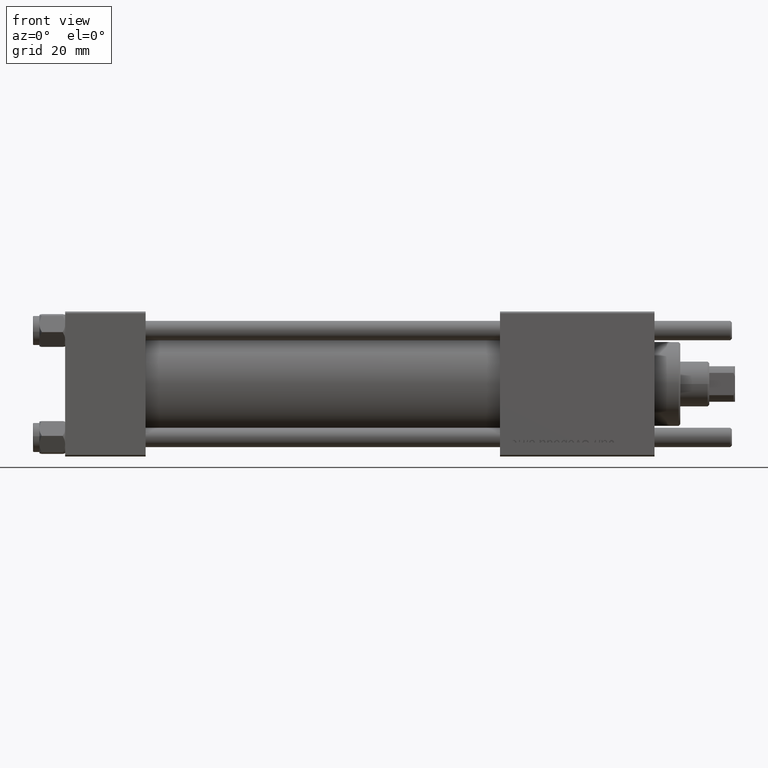
[diagram: clean part render]
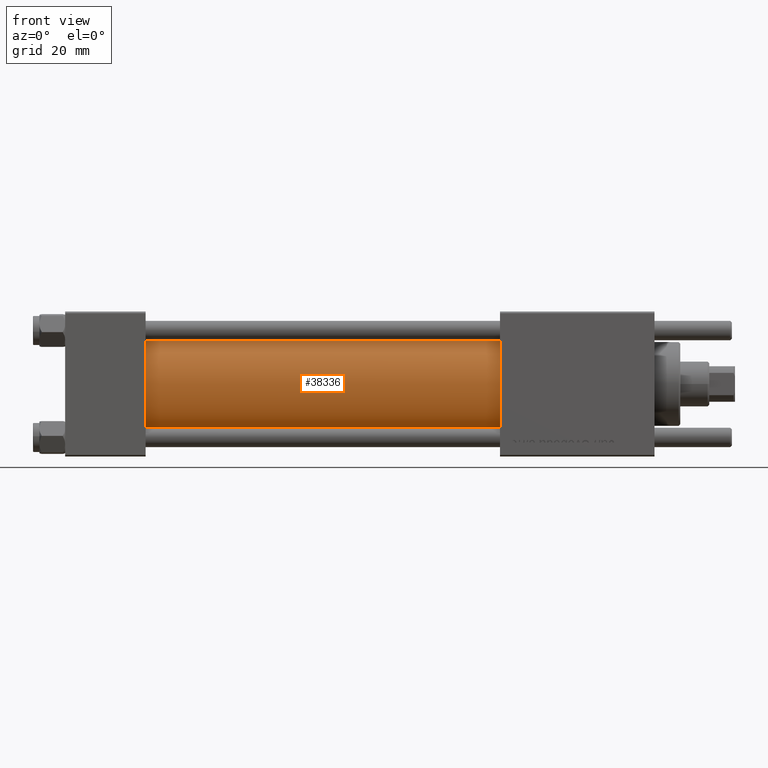
[diagram: same view with one face highlighted and labeled with its STEP entity id]
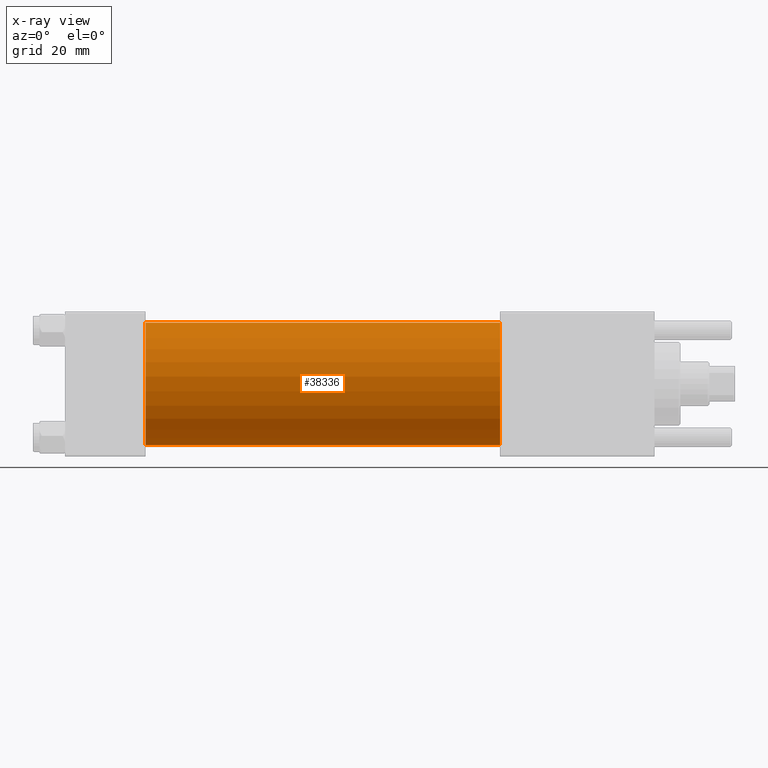
[diagram: x-ray of the same camera — body ghosted, the highlighted face saturated]
A machine part, front view. The second image highlights one B-rep face of the part: STEP entity #38336.
The next image is the same camera in x-ray: the body ghosted, the highlighted face saturated — about 0% of this face is hidden behind the body in this view.
In plain terms, the highlighted cylindrical surface (partial cylindrical patch) has radius 19 mm, axis along (-1, -0, -0).
Its self-contained STEP definition (entity closure, byte-faithful):
#202 = CARTESIAN_POINT ( 'NONE',  ( 135.0000000000000000, -2.602085213965210642E-15, 19.00000000000000000 ) ) ;
#823 = CYLINDRICAL_SURFACE ( 'NONE', #49117, 19.00000000000000000 ) ;
#873 = ORIENTED_EDGE ( 'NONE', *, *, #19819, .T. ) ;
#2178 = CARTESIAN_POINT ( 'NONE',  ( 24.99999999999999289, -2.602085213965210642E-15, 0.000000000000000000 ) ) ;
#3458 = DIRECTION ( 'NONE',  ( 0.000000000000000000, 0.000000000000000000, -1.000000000000000000 ) ) ;
#5416 = CARTESIAN_POINT ( 'NONE',  ( 135.0000000000000000, -2.602085213965210642E-15, 0.000000000000000000 ) ) ;
#5609 = AXIS2_PLACEMENT_3D ( 'NONE', #2178, #46436, #19710 ) ;
#10671 = CIRCLE ( 'NONE', #36423, 19.00000000000000000 ) ;
#10805 = DIRECTION ( 'NONE',  ( -1.000000000000000000, -0.000000000000000000, -0.000000000000000000 ) ) ;
#11149 = CARTESIAN_POINT ( 'NONE',  ( 135.0000000000000000, -2.752562955852396712E-16, -19.00000000000000000 ) ) ;
#11366 = CARTESIAN_POINT ( 'NONE',  ( 135.0000000000000000, -2.752562955852396712E-16, -19.00000000000000000 ) ) ;
#19209 = FACE_OUTER_BOUND ( 'NONE', #46988, .T. ) ;
#19710 = DIRECTION ( 'NONE',  ( 0.000000000000000000, 0.000000000000000000, 1.000000000000000000 ) ) ;
#19729 = EDGE_CURVE ( 'NONE', #31072, #26698, #46161, .T. ) ;
#19819 = EDGE_CURVE ( 'NONE', #34242, #26698, #23058, .T. ) ;
#20396 = DIRECTION ( 'NONE',  ( -1.000000000000000000, -0.000000000000000000, -0.000000000000000000 ) ) ;
#20438 = ORIENTED_EDGE ( 'NONE', *, *, #19729, .F. ) ;
#23058 = CIRCLE ( 'NONE', #5609, 19.00000000000000000 ) ;
#26698 = VERTEX_POINT ( 'NONE', #38343 ) ;
#27362 = CARTESIAN_POINT ( 'NONE',  ( 24.99999999999999289, -2.602085213965210642E-15, 19.00000000000000000 ) ) ;
#29165 = ORIENTED_EDGE ( 'NONE', *, *, #40291, .T. ) ;
#29451 = VECTOR ( 'NONE', #10805, 1000.000000000000000 ) ;
#29653 = ORIENTED_EDGE ( 'NONE', *, *, #43537, .F. ) ;
#31072 = VERTEX_POINT ( 'NONE', #11149 ) ;
#31176 = VERTEX_POINT ( 'NONE', #202 ) ;
#33348 = CARTESIAN_POINT ( 'NONE',  ( 135.0000000000000000, -2.602085213965210642E-15, 19.00000000000000000 ) ) ;
#33957 = CARTESIAN_POINT ( 'NONE',  ( 135.0000000000000000, -2.602085213965210642E-15, 0.000000000000000000 ) ) ;
#34242 = VERTEX_POINT ( 'NONE', #27362 ) ;
#36423 = AXIS2_PLACEMENT_3D ( 'NONE', #33957, #37977, #3458 ) ;
#37977 = DIRECTION ( 'NONE',  ( 1.000000000000000000, 0.000000000000000000, 0.000000000000000000 ) ) ;
#38336 = ADVANCED_FACE ( 'NONE', ( #19209 ), #823, .T. ) ;
#38343 = CARTESIAN_POINT ( 'NONE',  ( 24.99999999999999289, -2.752562955852396712E-16, -19.00000000000000000 ) ) ;
#40291 = EDGE_CURVE ( 'NONE', #31176, #34242, #50009, .T. ) ;
#40504 = DIRECTION ( 'NONE',  ( 0.000000000000000000, 0.000000000000000000, 1.000000000000000000 ) ) ;
#43537 = EDGE_CURVE ( 'NONE', #31176, #31072, #10671, .T. ) ;
#46161 = LINE ( 'NONE', #11366, #29451 ) ;
#46436 = DIRECTION ( 'NONE',  ( 1.000000000000000000, -0.000000000000000000, 0.000000000000000000 ) ) ;
#46988 = EDGE_LOOP ( 'NONE', ( #20438, #29653, #29165, #873 ) ) ;
#49117 = AXIS2_PLACEMENT_3D ( 'NONE', #5416, #49393, #40504 ) ;
#49393 = DIRECTION ( 'NONE',  ( -1.000000000000000000, -0.000000000000000000, -0.000000000000000000 ) ) ;
#50009 = LINE ( 'NONE', #33348, #53750 ) ;
#53750 = VECTOR ( 'NONE', #20396, 1000.000000000000000 ) ;